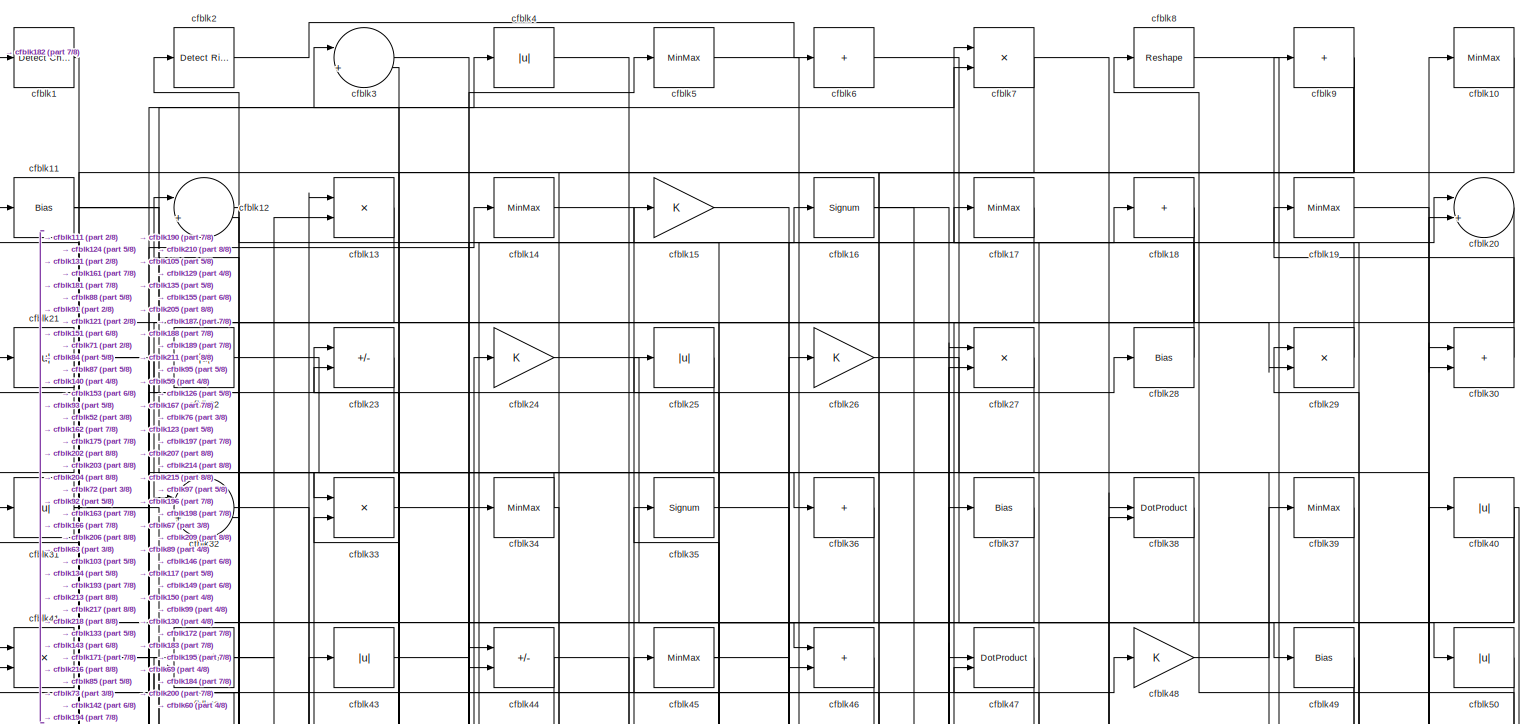
[diagram: root canvas - part 1/8, full width, top band]
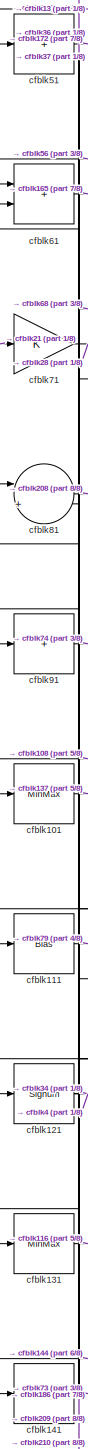
[diagram: root canvas - part 2/8, middle left region]
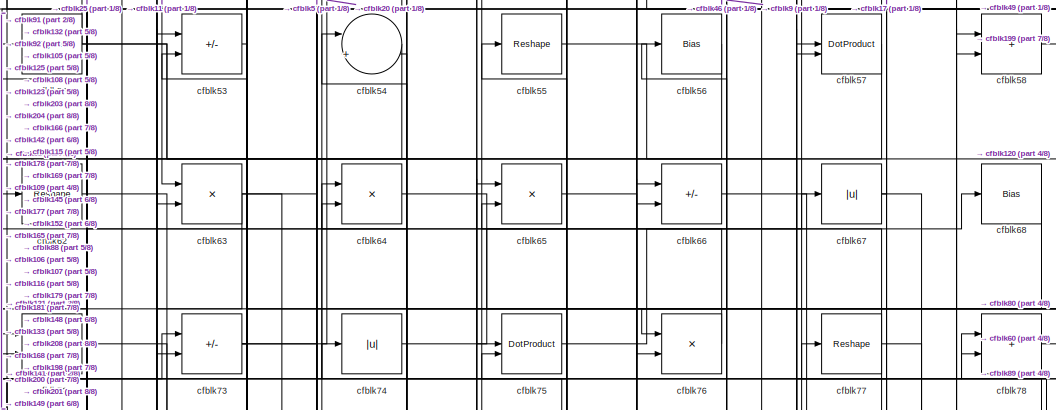
[diagram: root canvas - part 3/8, top center region]
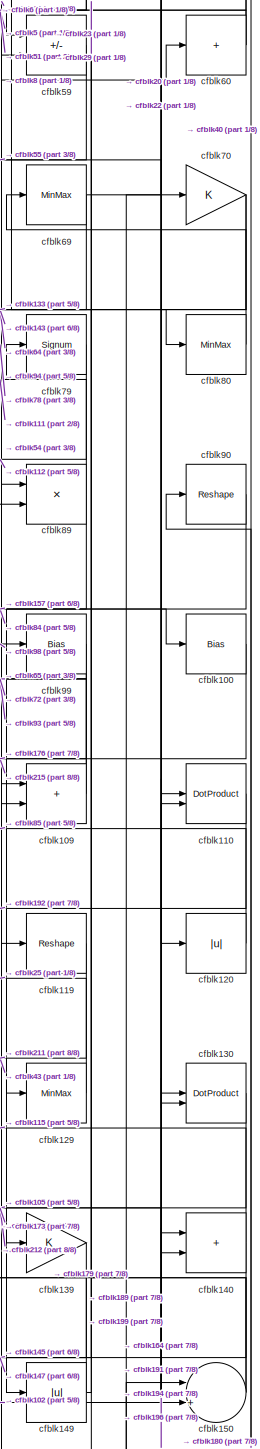
[diagram: root canvas - part 4/8, middle right region]
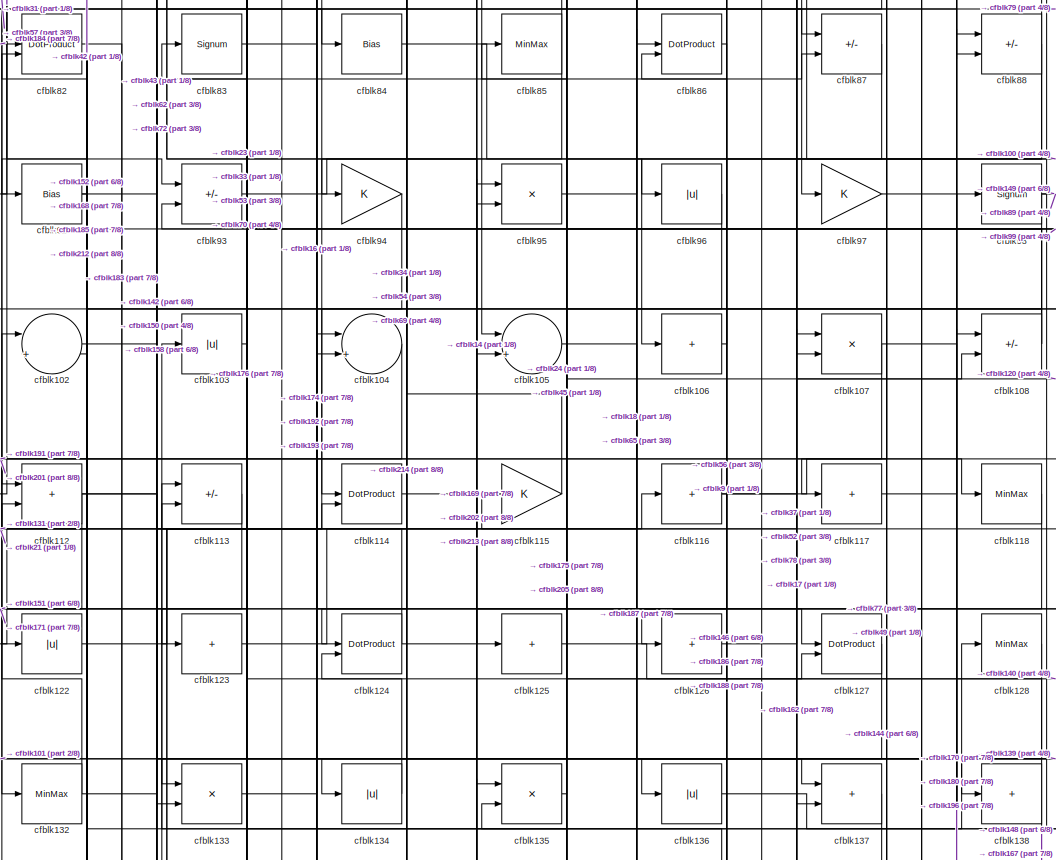
[diagram: root canvas - part 5/8, central region]
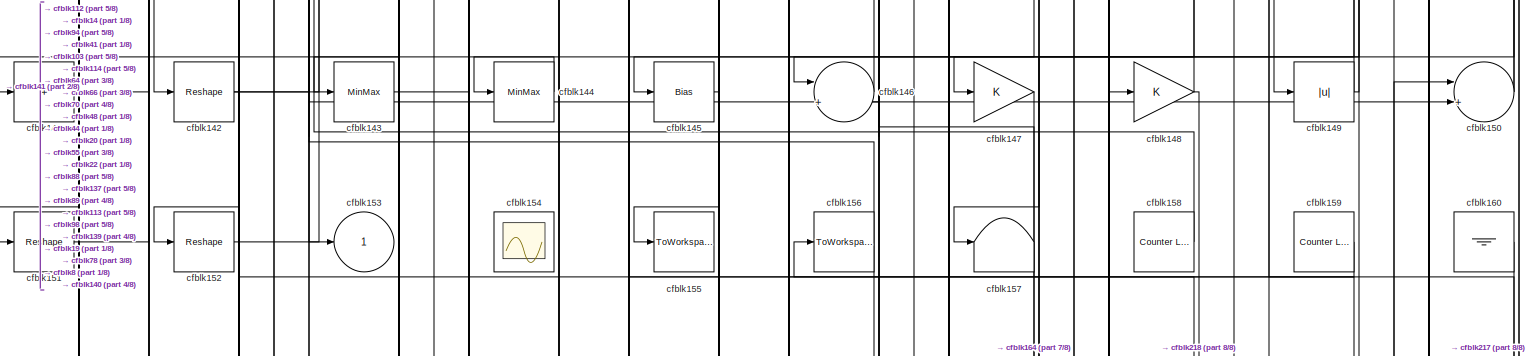
[diagram: root canvas - part 6/8, full width, bottom band]
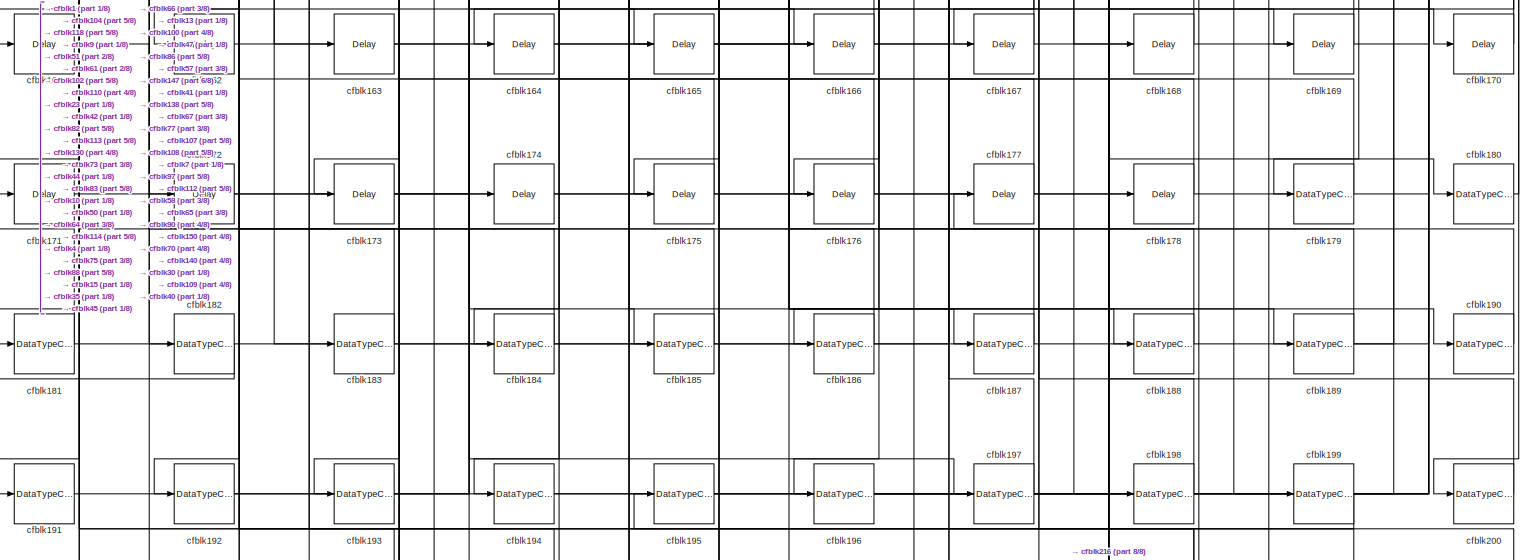
[diagram: root canvas - part 7/8, full width, bottom band]
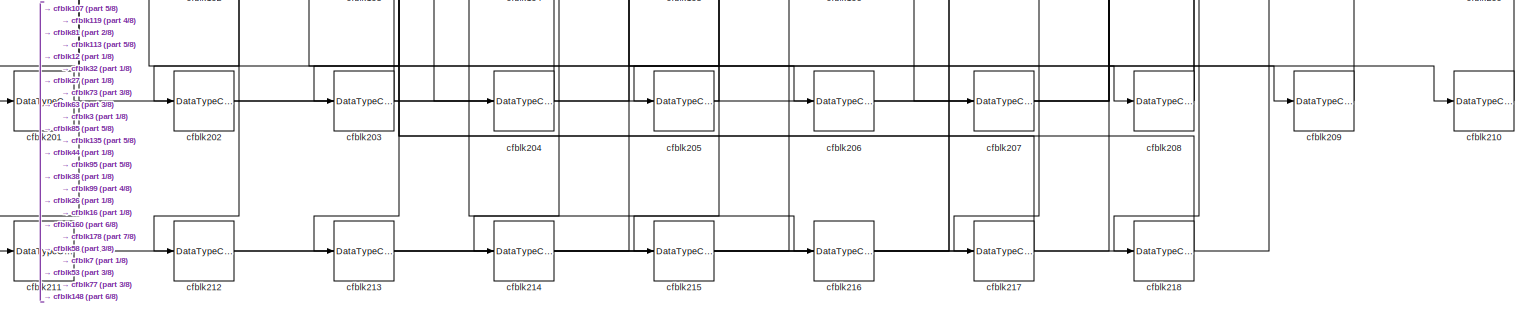
[diagram: root canvas - part 8/8, full width, bottom band]
MODEL slx_e1a1ac859f8a
KIND model
CONFIG AbsTol = auto
CONFIG EnableMultiTasking = off
CONFIG FixedStep = auto
CONFIG MaxStep = auto
CONFIG MinStep = auto
CONFIG RelTol = 1e-3
CONFIG SampleTimeConstraint = Unconstrained
CONFIG SolverName = VariableStepAuto
CONFIG StartTime = 0.0
CONFIG StopTime = 10.0
BLOCK [Reference] cfblk1  REF=simulink/Logic and Bit
Operations/Detect
Change
  LibrarySourceBlock = hdlsllib/Logic and Bit\nOperations/Detect\nChange
  SourceBlock = simulink/Logic and Bit\nOperations/Detect\nChange
  SourceType = Detect Change
BLOCK [MinMax] cfblk10
BLOCK [Bias] cfblk100
  Bias = 0.0
  SaturateOnIntegerOverflow = off
BLOCK [MinMax] cfblk101
BLOCK [Sum] cfblk102
  Inputs = |++
BLOCK [Abs] cfblk103
  SaturateOnIntegerOverflow = off
BLOCK [Sum] cfblk104
  Inputs = |++
BLOCK [Sum] cfblk105
  Inputs = |++
BLOCK [Sum] cfblk106
  IconShape = rectangular
  Inputs = +
BLOCK [Product] cfblk107
  Inputs = */
  RndMeth = Zero
  SaturateOnIntegerOverflow = on
BLOCK [Sum] cfblk108
  IconShape = rectangular
  Inputs = +-
BLOCK [Sum] cfblk109
  IconShape = rectangular
BLOCK [Bias] cfblk11
  Bias = 0.0
  SaturateOnIntegerOverflow = off
BLOCK [DotProduct] cfblk110
  OutDataTypeStr = Inherit: Inherit via internal rule
BLOCK [Bias] cfblk111
  Bias = 0.0
  SaturateOnIntegerOverflow = off
BLOCK [Sum] cfblk112
  IconShape = rectangular
BLOCK [Sum] cfblk113
  IconShape = rectangular
  Inputs = +-
BLOCK [DotProduct] cfblk114
  OutDataTypeStr = Inherit: Inherit via internal rule
BLOCK [Gain] cfblk115
BLOCK [Sum] cfblk116
  IconShape = rectangular
  Inputs = +
BLOCK [Sum] cfblk117
  IconShape = rectangular
  Inputs = +
BLOCK [MinMax] cfblk118
BLOCK [Reshape] cfblk119
BLOCK [Sum] cfblk12
  Inputs = |++
BLOCK [Abs] cfblk120
  SaturateOnIntegerOverflow = off
BLOCK [Signum] cfblk121
BLOCK [Abs] cfblk122
  SaturateOnIntegerOverflow = off
BLOCK [Sum] cfblk123
  IconShape = rectangular
  Inputs = +
BLOCK [DotProduct] cfblk124
  OutDataTypeStr = Inherit: Inherit via internal rule
BLOCK [Sum] cfblk125
  IconShape = rectangular
  Inputs = +
BLOCK [Sum] cfblk126
  IconShape = rectangular
  Inputs = +
BLOCK [DotProduct] cfblk127
  OutDataTypeStr = Inherit: Inherit via internal rule
BLOCK [MinMax] cfblk128
BLOCK [MinMax] cfblk129
BLOCK [Product] cfblk13
  Inputs = */
  RndMeth = Zero
  SaturateOnIntegerOverflow = on
BLOCK [DotProduct] cfblk130
  OutDataTypeStr = Inherit: Inherit via internal rule
BLOCK [MinMax] cfblk131
BLOCK [MinMax] cfblk132
BLOCK [Product] cfblk133
  Inputs = */
  RndMeth = Zero
  SaturateOnIntegerOverflow = on
BLOCK [Abs] cfblk134
  SaturateOnIntegerOverflow = off
BLOCK [Product] cfblk135
  Inputs = */
  RndMeth = Zero
  SaturateOnIntegerOverflow = on
BLOCK [Abs] cfblk136
  SaturateOnIntegerOverflow = off
BLOCK [Sum] cfblk137
  IconShape = rectangular
BLOCK [Sum] cfblk138
  IconShape = rectangular
  Inputs = +
BLOCK [Gain] cfblk139
BLOCK [MinMax] cfblk14
BLOCK [Sum] cfblk140
  IconShape = rectangular
BLOCK [Sum] cfblk141
  IconShape = rectangular
  Inputs = +
BLOCK [Reshape] cfblk142
BLOCK [MinMax] cfblk143
BLOCK [MinMax] cfblk144
BLOCK [Bias] cfblk145
  Bias = 0.0
  SaturateOnIntegerOverflow = off
BLOCK [Sum] cfblk146
  Inputs = |++
BLOCK [Gain] cfblk147
BLOCK [Gain] cfblk148
BLOCK [Abs] cfblk149
  SaturateOnIntegerOverflow = off
BLOCK [Gain] cfblk15
BLOCK [Sum] cfblk150
  Inputs = |++
BLOCK [Reshape] cfblk151
BLOCK [Reshape] cfblk152
BLOCK [Outport] cfblk153
  VectorParamsAs1DForOutWhenUnconnected = off
BLOCK [Scope] cfblk154
  Floating = on
  NumInputPorts = 1
  ScopeSpecificationString = Simulink.scopes.TimeScopeBlockCfg('CurrentConfiguration', extmgr.ConfigurationSet(extmgr.Configuration('Core','General UI',true,'FigureColor',[0.156862745098039 0.156862745098039 0.156862745098039]),extmgr.Configuration('Core','Source UI',true),extmgr.Configuration('Sources','WiredSimulink',true,'DataLoggingVariableName','ScopeData1','DataLoggingSaveFormat','StructureWithTime','DataLoggingLimitDat...<+2713ch>
BLOCK [ToWorkspace] cfblk155
  MaxDataPoints = inf
  SampleTime = -1
  SaveFormat = Timeseries
  VariableName = simout
BLOCK [ToWorkspace] cfblk156
  MaxDataPoints = inf
  SampleTime = -1
  SaveFormat = Timeseries
  VariableName = simout
BLOCK [Terminator] cfblk157
BLOCK [Reference] cfblk158  REF=hdlsllib/Sources/Counter
Limited
  SourceBlock = hdlsllib/Sources/Counter\nLimited
  SourceType = Counter Limited
BLOCK [Reference] cfblk159  REF=hdlsllib/Sources/Counter
Limited
  SourceBlock = hdlsllib/Sources/Counter\nLimited
  SourceType = Counter Limited
BLOCK [Signum] cfblk16
BLOCK [Ground] cfblk160
BLOCK [Delay] cfblk161
  InputPortMap = u0
  SampleTime = 1
BLOCK [Delay] cfblk162
  InputPortMap = u0
  SampleTime = 1
BLOCK [Delay] cfblk163
  InputPortMap = u0
  SampleTime = 1
BLOCK [Delay] cfblk164
  InputPortMap = u0
  SampleTime = 1
BLOCK [Delay] cfblk165
  InputPortMap = u0
  SampleTime = 1
BLOCK [Delay] cfblk166
  InputPortMap = u0
  SampleTime = 1
BLOCK [Delay] cfblk167
  InputPortMap = u0
  SampleTime = 1
BLOCK [Delay] cfblk168
  InputPortMap = u0
  SampleTime = 1
BLOCK [Delay] cfblk169
  InputPortMap = u0
  SampleTime = 1
BLOCK [MinMax] cfblk17
BLOCK [Delay] cfblk170
  InputPortMap = u0
  SampleTime = 1
BLOCK [Delay] cfblk171
  InputPortMap = u0
  SampleTime = 1
BLOCK [Delay] cfblk172
  InputPortMap = u0
  SampleTime = 1
BLOCK [Delay] cfblk173
  InputPortMap = u0
  SampleTime = 1
BLOCK [Delay] cfblk174
  InputPortMap = u0
  SampleTime = 1
BLOCK [Delay] cfblk175
  InputPortMap = u0
  SampleTime = 1
BLOCK [Delay] cfblk176
  InputPortMap = u0
  SampleTime = 1
BLOCK [Delay] cfblk177
  InputPortMap = u0
  SampleTime = 1
BLOCK [Delay] cfblk178
  InputPortMap = u0
  SampleTime = 1
BLOCK [DataTypeConversion] cfblk179
  OutDataTypeStr = uint8
  RndMeth = Floor
  SaturateOnIntegerOverflow = off
BLOCK [Sum] cfblk18
  IconShape = rectangular
  Inputs = +
BLOCK [DataTypeConversion] cfblk180
  OutDataTypeStr = uint8
  RndMeth = Floor
  SaturateOnIntegerOverflow = off
BLOCK [DataTypeConversion] cfblk181
  RndMeth = Floor
  SaturateOnIntegerOverflow = off
BLOCK [DataTypeConversion] cfblk182
  OutDataTypeStr = uint8
  RndMeth = Floor
  SaturateOnIntegerOverflow = off
BLOCK [DataTypeConversion] cfblk183
  RndMeth = Floor
  SaturateOnIntegerOverflow = off
BLOCK [DataTypeConversion] cfblk184
  OutDataTypeStr = uint8
  RndMeth = Floor
  SaturateOnIntegerOverflow = off
BLOCK [DataTypeConversion] cfblk185
  OutDataTypeStr = uint8
  RndMeth = Floor
  SaturateOnIntegerOverflow = off
BLOCK [DataTypeConversion] cfblk186
  OutDataTypeStr = uint8
  RndMeth = Floor
  SaturateOnIntegerOverflow = off
BLOCK [DataTypeConversion] cfblk187
  OutDataTypeStr = uint8
  RndMeth = Floor
  SaturateOnIntegerOverflow = off
BLOCK [DataTypeConversion] cfblk188
  OutDataTypeStr = uint8
  RndMeth = Floor
  SaturateOnIntegerOverflow = off
BLOCK [DataTypeConversion] cfblk189
  RndMeth = Floor
  SaturateOnIntegerOverflow = off
BLOCK [MinMax] cfblk19
BLOCK [DataTypeConversion] cfblk190
  OutDataTypeStr = uint8
  RndMeth = Floor
  SaturateOnIntegerOverflow = off
BLOCK [DataTypeConversion] cfblk191
  OutDataTypeStr = uint8
  RndMeth = Floor
  SaturateOnIntegerOverflow = off
BLOCK [DataTypeConversion] cfblk192
  OutDataTypeStr = uint8
  RndMeth = Floor
  SaturateOnIntegerOverflow = off
BLOCK [DataTypeConversion] cfblk193
  OutDataTypeStr = uint8
  RndMeth = Floor
  SaturateOnIntegerOverflow = off
BLOCK [DataTypeConversion] cfblk194
  OutDataTypeStr = uint8
  RndMeth = Floor
  SaturateOnIntegerOverflow = off
BLOCK [DataTypeConversion] cfblk195
  OutDataTypeStr = uint8
  RndMeth = Floor
  SaturateOnIntegerOverflow = off
BLOCK [DataTypeConversion] cfblk196
  RndMeth = Floor
  SaturateOnIntegerOverflow = off
BLOCK [DataTypeConversion] cfblk197
  OutDataTypeStr = uint8
  RndMeth = Floor
  SaturateOnIntegerOverflow = off
BLOCK [DataTypeConversion] cfblk198
  OutDataTypeStr = uint8
  RndMeth = Floor
  SaturateOnIntegerOverflow = off
BLOCK [DataTypeConversion] cfblk199
  RndMeth = Floor
  SaturateOnIntegerOverflow = off
BLOCK [Reference] cfblk2  REF=hdlsllib/Logic and Bit
Operations/Detect Rise
Positive
  SourceBlock = hdlsllib/Logic and Bit\nOperations/Detect Rise\nPositive
  SourceType = Detect Rise Positive
BLOCK [Sum] cfblk20
  Inputs = |++
BLOCK [DataTypeConversion] cfblk200
  OutDataTypeStr = uint8
  RndMeth = Floor
  SaturateOnIntegerOverflow = off
BLOCK [DataTypeConversion] cfblk201
  OutDataTypeStr = uint8
  RndMeth = Floor
  SaturateOnIntegerOverflow = off
BLOCK [DataTypeConversion] cfblk202
  OutDataTypeStr = uint8
  RndMeth = Floor
  SaturateOnIntegerOverflow = off
BLOCK [DataTypeConversion] cfblk203
  OutDataTypeStr = uint8
  RndMeth = Floor
  SaturateOnIntegerOverflow = off
BLOCK [DataTypeConversion] cfblk204
  OutDataTypeStr = uint8
  RndMeth = Floor
  SaturateOnIntegerOverflow = off
BLOCK [DataTypeConversion] cfblk205
  OutDataTypeStr = uint8
  RndMeth = Floor
  SaturateOnIntegerOverflow = off
BLOCK [DataTypeConversion] cfblk206
  OutDataTypeStr = uint8
  RndMeth = Floor
  SaturateOnIntegerOverflow = off
BLOCK [DataTypeConversion] cfblk207
  OutDataTypeStr = uint8
  RndMeth = Floor
  SaturateOnIntegerOverflow = off
BLOCK [DataTypeConversion] cfblk208
  RndMeth = Floor
  SaturateOnIntegerOverflow = off
BLOCK [DataTypeConversion] cfblk209
  OutDataTypeStr = uint8
  RndMeth = Floor
  SaturateOnIntegerOverflow = off
BLOCK [Abs] cfblk21
  SaturateOnIntegerOverflow = off
BLOCK [DataTypeConversion] cfblk210
  OutDataTypeStr = uint8
  RndMeth = Floor
  SaturateOnIntegerOverflow = off
BLOCK [DataTypeConversion] cfblk211
  OutDataTypeStr = uint8
  RndMeth = Floor
  SaturateOnIntegerOverflow = off
BLOCK [DataTypeConversion] cfblk212
  OutDataTypeStr = uint8
  RndMeth = Floor
  SaturateOnIntegerOverflow = off
BLOCK [DataTypeConversion] cfblk213
  OutDataTypeStr = uint8
  RndMeth = Floor
  SaturateOnIntegerOverflow = off
BLOCK [DataTypeConversion] cfblk214
  OutDataTypeStr = uint8
  RndMeth = Floor
  SaturateOnIntegerOverflow = off
BLOCK [DataTypeConversion] cfblk215
  OutDataTypeStr = uint8
  RndMeth = Floor
  SaturateOnIntegerOverflow = off
BLOCK [DataTypeConversion] cfblk216
  OutDataTypeStr = uint8
  RndMeth = Floor
  SaturateOnIntegerOverflow = off
BLOCK [DataTypeConversion] cfblk217
  OutDataTypeStr = uint8
  RndMeth = Floor
  SaturateOnIntegerOverflow = off
BLOCK [DataTypeConversion] cfblk218
  OutDataTypeStr = uint8
  RndMeth = Floor
  SaturateOnIntegerOverflow = off
BLOCK [Abs] cfblk22
  SaturateOnIntegerOverflow = off
BLOCK [Sum] cfblk23
  IconShape = rectangular
  Inputs = +-
BLOCK [Gain] cfblk24
BLOCK [Abs] cfblk25
  SaturateOnIntegerOverflow = off
BLOCK [Gain] cfblk26
BLOCK [Product] cfblk27
  Inputs = */
  RndMeth = Zero
  SaturateOnIntegerOverflow = on
BLOCK [Bias] cfblk28
  Bias = 0.0
  SaturateOnIntegerOverflow = off
BLOCK [Product] cfblk29
  Inputs = */
  RndMeth = Zero
  SaturateOnIntegerOverflow = on
BLOCK [Sum] cfblk3
  Inputs = |++
BLOCK [Sum] cfblk30
  IconShape = rectangular
BLOCK [Abs] cfblk31
  SaturateOnIntegerOverflow = off
BLOCK [Sum] cfblk32
  Inputs = |++
BLOCK [Product] cfblk33
  Inputs = */
  RndMeth = Zero
  SaturateOnIntegerOverflow = on
BLOCK [MinMax] cfblk34
BLOCK [Signum] cfblk35
BLOCK [Sum] cfblk36
  IconShape = rectangular
  Inputs = +
BLOCK [Bias] cfblk37
  Bias = 0.0
  SaturateOnIntegerOverflow = off
BLOCK [DotProduct] cfblk38
  OutDataTypeStr = Inherit: Inherit via internal rule
BLOCK [MinMax] cfblk39
BLOCK [Abs] cfblk4
  SaturateOnIntegerOverflow = off
BLOCK [Abs] cfblk40
  SaturateOnIntegerOverflow = off
BLOCK [Product] cfblk41
  Inputs = */
  RndMeth = Zero
  SaturateOnIntegerOverflow = on
BLOCK [DotProduct] cfblk42
  OutDataTypeStr = Inherit: Inherit via internal rule
BLOCK [Abs] cfblk43
  SaturateOnIntegerOverflow = off
BLOCK [Sum] cfblk44
  IconShape = rectangular
  Inputs = +-
BLOCK [MinMax] cfblk45
BLOCK [Sum] cfblk46
  IconShape = rectangular
BLOCK [DotProduct] cfblk47
  OutDataTypeStr = Inherit: Inherit via internal rule
BLOCK [Gain] cfblk48
BLOCK [Bias] cfblk49
  Bias = 0.0
  SaturateOnIntegerOverflow = off
BLOCK [MinMax] cfblk5
BLOCK [Abs] cfblk50
  SaturateOnIntegerOverflow = off
BLOCK [Sum] cfblk51
  IconShape = rectangular
  Inputs = +
BLOCK [Signum] cfblk52
BLOCK [Sum] cfblk53
  IconShape = rectangular
  Inputs = +-
BLOCK [Sum] cfblk54
  Inputs = |++
BLOCK [Reshape] cfblk55
BLOCK [Bias] cfblk56
  Bias = 0.0
  SaturateOnIntegerOverflow = off
BLOCK [DotProduct] cfblk57
  OutDataTypeStr = Inherit: Inherit via internal rule
BLOCK [Sum] cfblk58
  IconShape = rectangular
BLOCK [Sum] cfblk59
  IconShape = rectangular
  Inputs = +-
BLOCK [Sum] cfblk6
  IconShape = rectangular
  Inputs = +
BLOCK [Sum] cfblk60
  IconShape = rectangular
  Inputs = +
BLOCK [Sum] cfblk61
  IconShape = rectangular
BLOCK [Reshape] cfblk62
BLOCK [Product] cfblk63
  Inputs = */
  RndMeth = Zero
  SaturateOnIntegerOverflow = on
BLOCK [Product] cfblk64
  Inputs = */
  RndMeth = Zero
  SaturateOnIntegerOverflow = on
BLOCK [Product] cfblk65
  Inputs = */
  RndMeth = Zero
  SaturateOnIntegerOverflow = on
BLOCK [Sum] cfblk66
  IconShape = rectangular
  Inputs = +-
BLOCK [Abs] cfblk67
  SaturateOnIntegerOverflow = off
BLOCK [Bias] cfblk68
  Bias = 0.0
  SaturateOnIntegerOverflow = off
BLOCK [MinMax] cfblk69
BLOCK [Product] cfblk7
  Inputs = */
  RndMeth = Zero
  SaturateOnIntegerOverflow = on
BLOCK [Gain] cfblk70
BLOCK [Gain] cfblk71
BLOCK [Sum] cfblk72
  IconShape = rectangular
BLOCK [Sum] cfblk73
  IconShape = rectangular
  Inputs = +-
BLOCK [Abs] cfblk74
  SaturateOnIntegerOverflow = off
BLOCK [DotProduct] cfblk75
  OutDataTypeStr = Inherit: Inherit via internal rule
BLOCK [Product] cfblk76
  Inputs = */
  RndMeth = Zero
  SaturateOnIntegerOverflow = on
BLOCK [Reshape] cfblk77
BLOCK [Sum] cfblk78
  IconShape = rectangular
BLOCK [Signum] cfblk79
BLOCK [Reshape] cfblk8
BLOCK [MinMax] cfblk80
BLOCK [Sum] cfblk81
  Inputs = |++
BLOCK [DotProduct] cfblk82
  OutDataTypeStr = Inherit: Inherit via internal rule
BLOCK [Signum] cfblk83
BLOCK [Bias] cfblk84
  Bias = 0.0
  SaturateOnIntegerOverflow = off
BLOCK [MinMax] cfblk85
BLOCK [DotProduct] cfblk86
  OutDataTypeStr = Inherit: Inherit via internal rule
BLOCK [Sum] cfblk87
  IconShape = rectangular
  Inputs = +-
BLOCK [Sum] cfblk88
  IconShape = rectangular
  Inputs = +-
BLOCK [Product] cfblk89
  Inputs = */
  RndMeth = Zero
  SaturateOnIntegerOverflow = on
BLOCK [Sum] cfblk9
  IconShape = rectangular
  Inputs = +
BLOCK [Reshape] cfblk90
BLOCK [Sum] cfblk91
  IconShape = rectangular
  Inputs = +
BLOCK [Bias] cfblk92
  Bias = 0.0
  SaturateOnIntegerOverflow = off
BLOCK [Sum] cfblk93
  IconShape = rectangular
  Inputs = +-
BLOCK [Gain] cfblk94
BLOCK [Product] cfblk95
  Inputs = */
  RndMeth = Zero
  SaturateOnIntegerOverflow = on
BLOCK [Abs] cfblk96
  SaturateOnIntegerOverflow = off
BLOCK [Gain] cfblk97
BLOCK [Signum] cfblk98
BLOCK [Bias] cfblk99
  Bias = 0.0
  SaturateOnIntegerOverflow = off
LINE cfblk100:1 -> cfblk176:1
LINE cfblk101:1 -> cfblk137:1
LINE cfblk102:1 -> cfblk150:2
LINE cfblk103:1 -> cfblk33:2
LINE cfblk104:1 -> cfblk191:1
LINE cfblk105:1 -> cfblk139:1
LINE cfblk106:1 -> cfblk56:1
NET cfblk107:1 -> cfblk180:1, cfblk201:1
NET cfblk108:1 -> cfblk101:1, cfblk53:2, cfblk83:1
NET cfblk109:1 -> cfblk65:2, cfblk72:2
LINE cfblk10:1 -> cfblk194:1
LINE cfblk110:1 -> cfblk192:1
LINE cfblk111:1 -> cfblk79:1
NET cfblk112:1 -> cfblk137:2, cfblk138:1, cfblk151:1
LINE cfblk113:1 -> cfblk212:1
LINE cfblk114:1 -> cfblk169:1
LINE cfblk115:1 -> cfblk54:1
NET cfblk116:1 -> cfblk118:1, cfblk78:1
LINE cfblk117:1 -> cfblk98:1
LINE cfblk118:1 -> cfblk171:1
LINE cfblk119:1 -> cfblk211:1
NET cfblk11:1 -> cfblk29:2, cfblk63:1, cfblk7:2
LINE cfblk120:1 -> cfblk85:1
NET cfblk121:1 -> cfblk34:1, cfblk4:1
LINE cfblk122:1 -> cfblk95:1
LINE cfblk123:1 -> cfblk37:1
NET cfblk124:1 -> cfblk127:1, cfblk21:1
LINE cfblk125:1 -> cfblk127:2
LINE cfblk126:1 -> cfblk108:2
LINE cfblk127:1 -> cfblk136:1
LINE cfblk128:1 -> cfblk134:1
LINE cfblk129:1 -> cfblk25:1
LINE cfblk12:1 -> cfblk202:1
LINE cfblk130:1 -> cfblk173:1
LINE cfblk131:1 -> cfblk116:1
NET cfblk132:1 -> cfblk102:1, cfblk87:2
LINE cfblk133:1 -> cfblk16:1
LINE cfblk134:1 -> cfblk23:1
LINE cfblk135:1 -> cfblk45:1
LINE cfblk136:1 -> cfblk128:1
LINE cfblk137:1 -> cfblk144:1
NET cfblk138:1 -> cfblk124:2, cfblk167:1
LINE cfblk139:1 -> cfblk147:1
LINE cfblk13:1 -> cfblk111:1
NET cfblk140:1 -> cfblk115:1, cfblk145:1
LINE cfblk141:1 -> cfblk73:1
NET cfblk142:1 -> cfblk114:2, cfblk64:1
LINE cfblk143:1 -> cfblk48:1
LINE cfblk144:1 -> cfblk141:1
LINE cfblk145:1 -> cfblk55:1
LINE cfblk146:1 -> cfblk22:1
LINE cfblk147:1 -> cfblk164:1
NET cfblk148:1 -> cfblk113:1, cfblk218:1
NET cfblk149:1 -> cfblk19:1, cfblk78:2
LINE cfblk14:1 -> cfblk105:1
NET cfblk150:1 -> cfblk23:2, cfblk29:1
LINE cfblk151:1 -> cfblk14:1
LINE cfblk152:1 -> cfblk66:2
LINE cfblk158:1 -> cfblk103:1
LINE cfblk159:1 -> cfblk156:1
LINE cfblk15:1 -> cfblk187:1
LINE cfblk160:1 -> cfblk217:1
LINE cfblk161:1 -> cfblk182:1
LINE cfblk162:1 -> cfblk107:1
LINE cfblk163:1 -> cfblk185:1
LINE cfblk164:1 -> cfblk140:1
LINE cfblk165:1 -> cfblk66:1
LINE cfblk166:1 -> cfblk13:1
LINE cfblk167:1 -> cfblk41:2
LINE cfblk168:1 -> cfblk112:2
LINE cfblk169:1 -> cfblk65:1
NET cfblk16:1 -> cfblk207:1, cfblk59:2
LINE cfblk170:1 -> cfblk109:1
LINE cfblk171:1 -> cfblk44:1
LINE cfblk172:1 -> cfblk30:1
LINE cfblk173:1 -> cfblk197:1
LINE cfblk174:1 -> cfblk88:1
LINE cfblk175:1 -> cfblk42:2
LINE cfblk176:1 -> cfblk113:2
LINE cfblk177:1 -> cfblk75:2
LINE cfblk178:1 -> cfblk64:2
LINE cfblk179:1 -> cfblk57:1
LINE cfblk17:1 -> cfblk97:1
LINE cfblk180:1 -> cfblk90:1
NET cfblk181:1 -> cfblk41:1, cfblk57:2
LINE cfblk182:1 -> cfblk1:1
NET cfblk183:1 -> cfblk102:2, cfblk40:1
LINE cfblk184:1 -> cfblk82:1
LINE cfblk185:1 -> cfblk82:2
LINE cfblk186:1 -> cfblk61:2
LINE cfblk187:1 -> cfblk86:1
LINE cfblk188:1 -> cfblk86:2
NET cfblk189:1 -> cfblk177:1, cfblk70:1
NET cfblk18:1 -> cfblk32:1, cfblk32:2
LINE cfblk190:1 -> cfblk35:1
LINE cfblk191:1 -> cfblk130:1
LINE cfblk192:1 -> cfblk104:1
LINE cfblk193:1 -> cfblk104:2
LINE cfblk194:1 -> cfblk110:1
LINE cfblk195:1 -> cfblk10:1
NET cfblk196:1 -> cfblk108:1, cfblk110:2
LINE cfblk197:1 -> cfblk47:1
LINE cfblk198:1 -> cfblk47:2
NET cfblk199:1 -> cfblk150:1, cfblk195:1
LINE cfblk19:1 -> cfblk30:2
LINE cfblk1:1 -> cfblk181:1
LINE cfblk200:1 -> cfblk58:1
LINE cfblk201:1 -> cfblk58:2
LINE cfblk202:1 -> cfblk135:1
LINE cfblk203:1 -> cfblk12:1
LINE cfblk204:1 -> cfblk12:2
LINE cfblk205:1 -> cfblk135:2
LINE cfblk206:1 -> cfblk38:1
LINE cfblk207:1 -> cfblk38:2
NET cfblk208:1 -> cfblk53:1, cfblk77:1
LINE cfblk209:1 -> cfblk81:1
LINE cfblk20:1 -> cfblk155:1
LINE cfblk210:1 -> cfblk81:2
LINE cfblk211:1 -> cfblk26:1
LINE cfblk212:1 -> cfblk119:1
LINE cfblk213:1 -> cfblk95:2
LINE cfblk214:1 -> cfblk27:1
LINE cfblk215:1 -> cfblk27:2
LINE cfblk216:1 -> cfblk178:1
LINE cfblk217:1 -> cfblk3:1
LINE cfblk218:1 -> cfblk3:2
NET cfblk21:1 -> cfblk71:1, cfblk84:1, cfblk87:1
LINE cfblk22:1 -> cfblk130:2
LINE cfblk23:1 -> cfblk162:1
LINE cfblk24:1 -> cfblk50:1
LINE cfblk25:1 -> cfblk72:1
LINE cfblk26:1 -> cfblk49:1
LINE cfblk27:1 -> cfblk213:1
LINE cfblk28:1 -> cfblk7:1
LINE cfblk29:1 -> cfblk2:1
LINE cfblk2:1 -> cfblk6:1
LINE cfblk30:1 -> cfblk9:1
NET cfblk31:1 -> cfblk36:1, cfblk93:1
LINE cfblk32:1 -> cfblk206:1
LINE cfblk33:1 -> cfblk46:1
NET cfblk34:1 -> cfblk124:1, cfblk33:1
LINE cfblk35:1 -> cfblk189:1
LINE cfblk36:1 -> cfblk91:1
LINE cfblk37:1 -> cfblk131:1
LINE cfblk38:1 -> cfblk205:1
LINE cfblk39:1 -> cfblk46:2
LINE cfblk3:1 -> cfblk216:1
NET cfblk40:1 -> cfblk200:1, cfblk44:2, cfblk99:1
NET cfblk41:1 -> cfblk140:2, cfblk153:1
NET cfblk42:1 -> cfblk13:2, cfblk163:1
LINE cfblk43:1 -> cfblk129:1
NET cfblk44:1 -> cfblk142:1, cfblk210:1
NET cfblk45:1 -> cfblk15:1, cfblk188:1
LINE cfblk46:1 -> cfblk63:2
LINE cfblk47:1 -> cfblk196:1
LINE cfblk48:1 -> cfblk39:1
NET cfblk49:1 -> cfblk117:1, cfblk76:2
LINE cfblk4:1 -> cfblk190:1
LINE cfblk50:1 -> cfblk184:1
LINE cfblk51:1 -> cfblk172:1
NET cfblk52:1 -> cfblk107:2, cfblk11:1, cfblk75:1
LINE cfblk53:1 -> cfblk123:1
LINE cfblk54:1 -> cfblk92:1
LINE cfblk55:1 -> cfblk120:1
LINE cfblk56:1 -> cfblk61:1
LINE cfblk57:1 -> cfblk132:1
LINE cfblk58:1 -> cfblk199:1
LINE cfblk59:1 -> cfblk109:2
LINE cfblk5:1 -> cfblk59:1
NET cfblk60:1 -> cfblk51:1, cfblk8:1
LINE cfblk61:1 -> cfblk165:1
LINE cfblk62:1 -> cfblk105:2
NET cfblk63:1 -> cfblk204:1, cfblk5:1, cfblk73:2
LINE cfblk64:1 -> cfblk80:1
LINE cfblk65:1 -> cfblk88:2
LINE cfblk66:1 -> cfblk148:1
NET cfblk67:1 -> cfblk17:1, cfblk198:1
LINE cfblk68:1 -> cfblk121:1
NET cfblk69:1 -> cfblk20:2, cfblk94:1
LINE cfblk6:1 -> cfblk89:1
NET cfblk70:1 -> cfblk133:1, cfblk143:1
LINE cfblk71:1 -> cfblk28:1
LINE cfblk72:1 -> cfblk125:1
NET cfblk73:1 -> cfblk166:1, cfblk203:1, cfblk20:1
LINE cfblk74:1 -> cfblk67:1
LINE cfblk75:1 -> cfblk68:1
LINE cfblk76:1 -> cfblk52:1
NET cfblk77:1 -> cfblk133:2, cfblk168:1, cfblk62:1
LINE cfblk78:1 -> cfblk60:1
LINE cfblk79:1 -> cfblk112:1
NET cfblk7:1 -> cfblk193:1, cfblk209:1
LINE cfblk80:1 -> cfblk69:1
LINE cfblk81:1 -> cfblk208:1
LINE cfblk82:1 -> cfblk183:1
LINE cfblk83:1 -> cfblk174:1
LINE cfblk84:1 -> cfblk100:1
NET cfblk85:1 -> cfblk214:1, cfblk24:1
LINE cfblk86:1 -> cfblk186:1
LINE cfblk87:1 -> cfblk106:1
NET cfblk88:1 -> cfblk146:2, cfblk175:1, cfblk31:1
NET cfblk89:1 -> cfblk157:1, cfblk54:2
LINE cfblk8:1 -> cfblk146:1
LINE cfblk90:1 -> cfblk179:1
LINE cfblk91:1 -> cfblk74:1
NET cfblk92:1 -> cfblk42:1, cfblk43:1
LINE cfblk93:1 -> cfblk96:1
LINE cfblk94:1 -> cfblk152:1
LINE cfblk95:1 -> cfblk18:1
LINE cfblk96:1 -> cfblk114:1
LINE cfblk97:1 -> cfblk170:1
NET cfblk98:1 -> cfblk122:1, cfblk149:1, cfblk89:2
NET cfblk99:1 -> cfblk215:1, cfblk93:2
NET cfblk9:1 -> cfblk126:1, cfblk161:1, cfblk76:1
note: NET lines group one-source signal fan-out (src -> all destinations, sorted); 1:1 wires keep LINE
